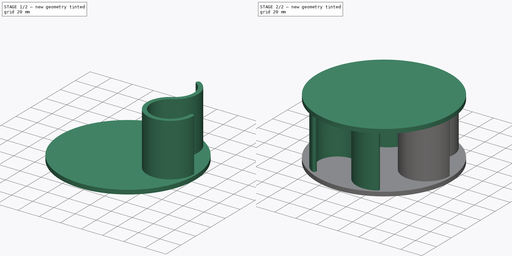
[diagram: build sequence overview — one tinted view per stage of 2, left to right]
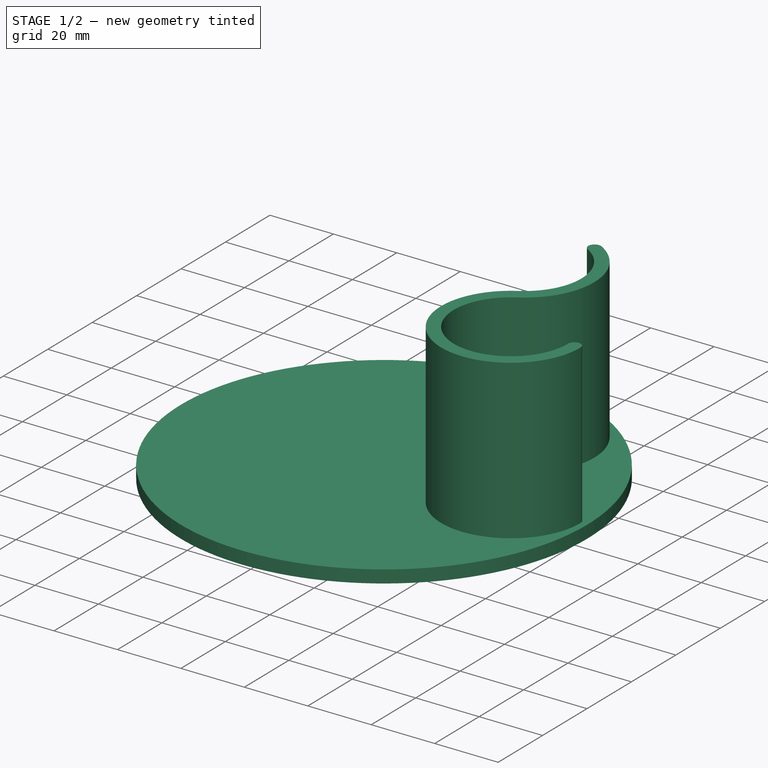
[diagram: stage 1 of 2 — iso view after this stage's code; geometry added in this stage tinted green]
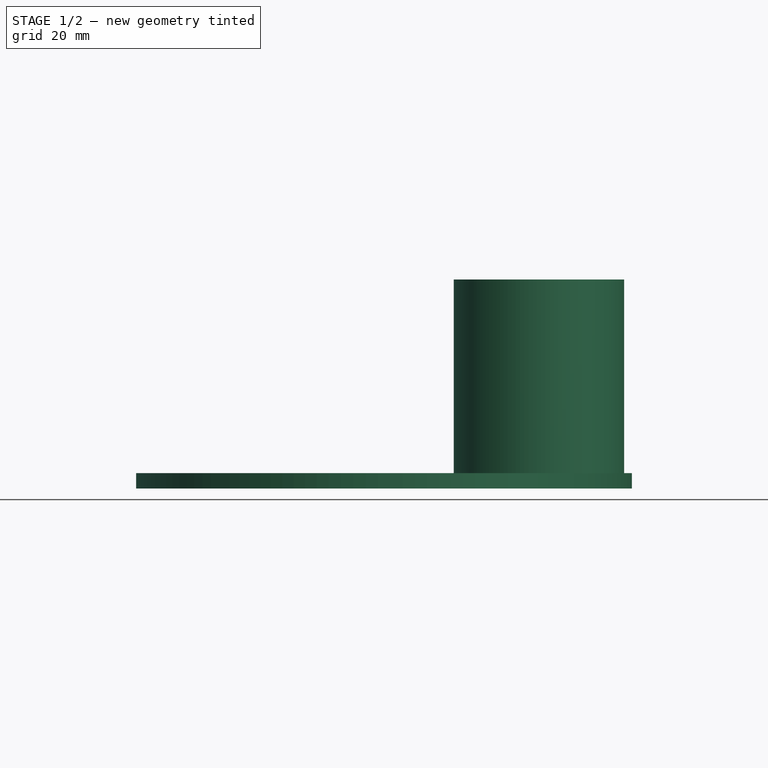
[diagram: stage 1 of 2 — front view after this stage's code; geometry added in this stage tinted green]
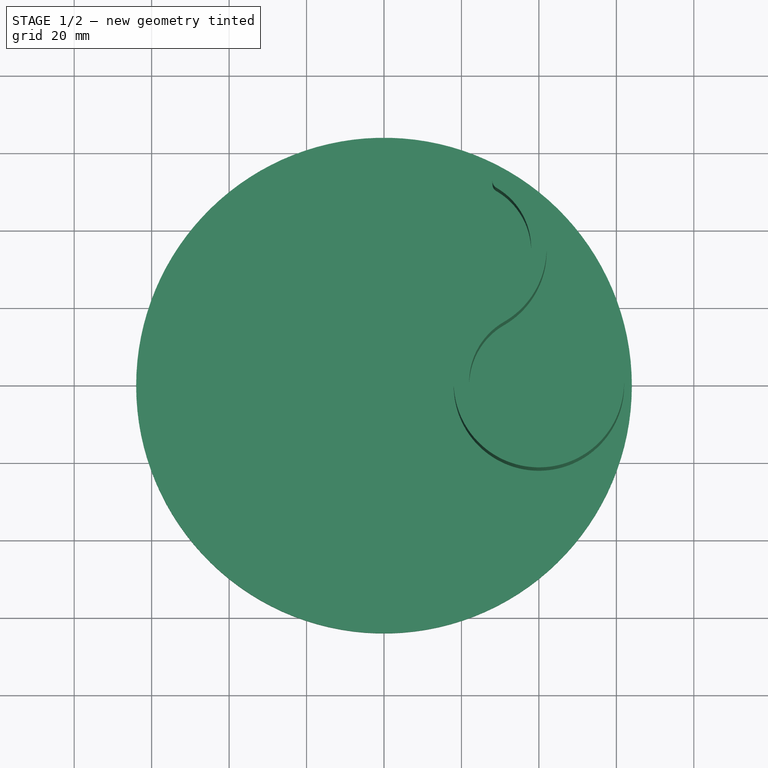
[diagram: stage 1 of 2 — top view after this stage's code; geometry added in this stage tinted green]
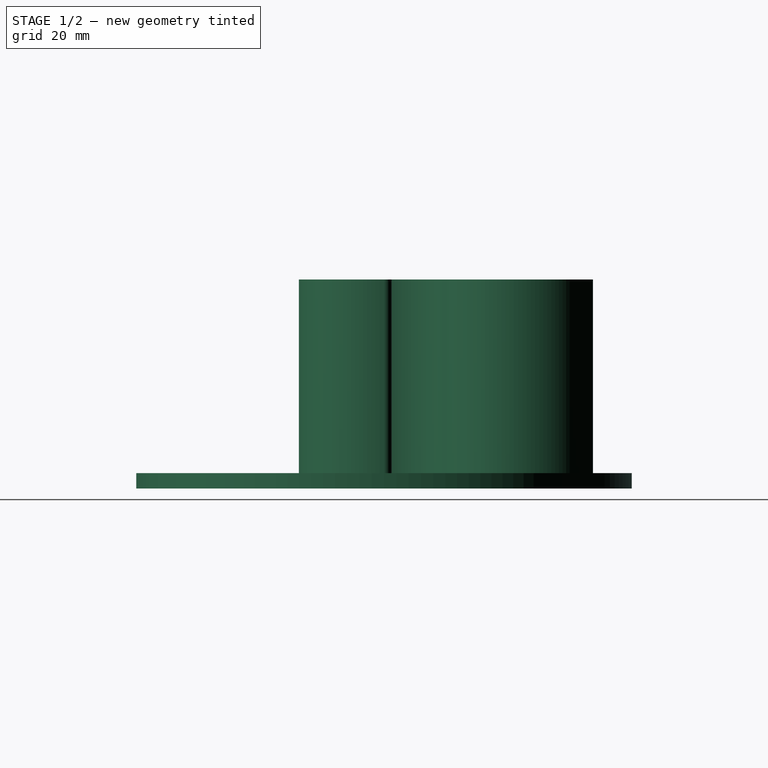
[diagram: stage 1 of 2 — right view after this stage's code; geometry added in this stage tinted green]
FCSTD DOCUMENT  (FreeCAD 0.19R24267 (Git))
Label: twist_turbine_BF
License: All rights reserved
LicenseURL: http://en.wikipedia.org/wiki/All_rights_reserved
objects: Sketcher::SketchObject×3, PartDesign::Pad×3, Spreadsheet::Sheet×1, PartDesign::PolarPattern×1, PartDesign::Body×1
note: 11 computed .brp shape members not serialized (recipe doc carries the construction recipe); baked Part::Feature solids carry a one-line shape summary decoded from their .brp

FEATURE [Spreadsheet::Sheet] Spreadsheet  label="Params"
  cells = A1=Name; B1=Value; C1=Description; A2=Arc Radius; B2(ArcRadius)=18; C2=Inner Radius of Each Arc; A3=Arc Thickness; B3(ArcThickness)=4; C3=The thickness of each arc wall; A4=Arc Seg Angle A; B4(ArcSegAngleA)=240; C4=Arc Segment angle for first half of the arc; A5=Arc Seg Angle B; B5(ArcSegAngleB)=120; C5=Arc Segment angle for second half of the arc; A6=Centre Circle Radius; B6(CentreCircleRadius)=20; C6=Radius of the Circle at the centre of the turbine; A7=Arc Blade Height; B7(ArcBladeHeight)=50; C7=The height of each blade / the distance between the two covers; A8=Blade Count; B8(BladeCount)=3; C8=The number of blades in the turbine (each will be equally spaced); A10=Calculated Values; B10=Value; C10=Description; A11=Cover Radius; B11(CoverRadius)==CentreCircleRadius * 3 + ArcThickness; C11=Radius of the top and bottom covers
FEATURE [Sketcher::SketchObject] Sketch  label="skBottomCover"
  FullyConstrained = true
  MapMode = 5
  Support = -> [XY_Plane]
  expr: Constraints[1] = <<Params>>.CoverRadius
  sketch-geometry (1):
    g0: Circle CenterX=0 CenterY=0 CenterZ=0 NormalX=0 NormalY=0 NormalZ=1 AngleXU=0 Radius=64
  constraints (2):
    c: Coincident(g0,g-1)
    c: Radius(g0) = 64
FEATURE [PartDesign::Pad] Pad  label="padBottomCover"
  Direction = (1,1,1)
  Length = 4
  Length2 = 100
  Profile = -> Sketch
  Reversed = true
  Type = 0
  expr: Length = <<Params>>.ArcThickness
FEATURE [Sketcher::SketchObject] Sketch001  label="skTurbineBlade"
  FullyConstrained = true
  MapMode = 5
  Support = -> [XY_Plane]
  expr: Constraints[27] = <<Params>>.ArcSegAngleB
  expr: Constraints[14] = <<Params>>.ArcRadius
  expr: Constraints[10] = <<Params>>.ArcRadius + <<Params>>.ArcThickness
  expr: Constraints[7] = 360 - <<Params>>.ArcSegAngleA
  expr: Constraints[1] = <<Params>>.CentreCircleRadius - <<Params>>.ArcThickness / 2
  sketch-geometry (11):
    g0: Circle CenterX=0 CenterY=0 CenterZ=0 NormalX=0 NormalY=0 NormalZ=1 AngleXU=0 Radius=18
    g1: ArcOfCircle CenterX=40 CenterY=0 CenterZ=0 NormalX=0 NormalY=0 NormalZ=1 AngleXU=0 Radius=22 StartAngle=2.0944 EndAngle=6.28319
    g2: LineSegment StartX=29 StartY=19.0526 StartZ=0 EndX=40 EndY=0 EndZ=0
    g3: LineSegment StartX=40 StartY=0 StartZ=0 EndX=62 EndY=-5.4e-15 EndZ=0
    g4: ArcOfCircle CenterX=40 CenterY=0 CenterZ=0 NormalX=0 NormalY=0 NormalZ=1 AngleXU=0 Radius=18 StartAngle=2.0944 EndAngle=6.28319
    g5: ArcOfCircle CenterX=60 CenterY=0 CenterZ=0 NormalX=0 NormalY=0 NormalZ=1 AngleXU=0 Radius=2 StartAngle=0 EndAngle=3.14159
    g6: ArcOfCircle CenterX=20 CenterY=34.641 CenterZ=0 NormalX=0 NormalY=0 NormalZ=1 AngleXU=0 Radius=22 StartAngle=5.23599 EndAngle=7.33038
    g7: ArcOfCircle CenterX=20 CenterY=34.641 CenterZ=0 NormalX=0 NormalY=0 NormalZ=1 AngleXU=0 Radius=18 StartAngle=5.23599 EndAngle=7.33038
    g8: LineSegment StartX=29 StartY=19.0526 StartZ=0 EndX=20 EndY=34.641 EndZ=0
    g9: LineSegment StartX=20 StartY=34.641 StartZ=0 EndX=28.9999 EndY=50.2295 EndZ=0
    g10: ArcOfCircle CenterX=29.9999 CenterY=51.9615 CenterZ=0 NormalX=0 NormalY=0 NormalZ=1 AngleXU=0 Radius=2 StartAngle=1.0472 EndAngle=4.18879
  constraints (32):
    c: Coincident(g0,g-1)
    c: Radius(g0) = 18
    c: PointOnObject(g1,g-1)
    c: Coincident(g2,g1)
    c: Coincident(g2,g1)
    c: Coincident(g3,g1)
    c: Coincident(g3,g1)
    c: Angle(g3,g2) = 2.0944
    c: PointOnObject(g1,g-1)
    c: Tangent(g1,g0)
    c: Radius(g1) = 22
    c: Coincident(g4,g1)
    c: PointOnObject(g4,g3)
    c: PointOnObject(g4,g2)
    c: Radius(g4) = 18
    c: PointOnObject(g5,g3)
    c: Coincident(g5,g4)
    c: Coincident(g5,g1)
    c: Coincident(g6,g4)
    c: Coincident(g7,g6)
    c: Coincident(g7,g1)
    c: Equal(g6,g1)
    c: Equal(g7,g4)
    c: Coincident(g8,g1)
    c: Coincident(g8,g6)
    c: Coincident(g9,g6)
    c: Coincident(g9,g7)
    c: Angle(g8,g9) = 2.0944
    c: PointOnObject(g6,g9)
    c: Coincident(g10,g6)
    c: Coincident(g10,g7)
    c: PointOnObject(g10,g9)
FEATURE [PartDesign::Pad] Pad001  label="padArcBlade"
  BaseFeature = -> Pad
  Direction = (1,1,1)
  Length = 50
  Length2 = 100
  Profile = -> Sketch001
  Type = 0
  expr: Length = <<Params>>.ArcBladeHeight
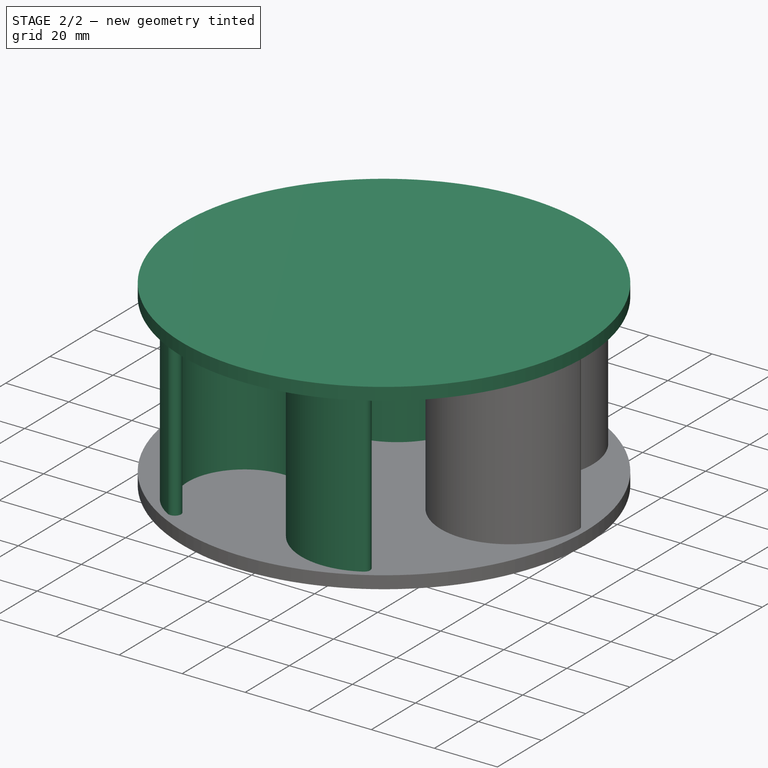
[diagram: stage 2 of 2 — iso view after this stage's code; geometry added in this stage tinted green]
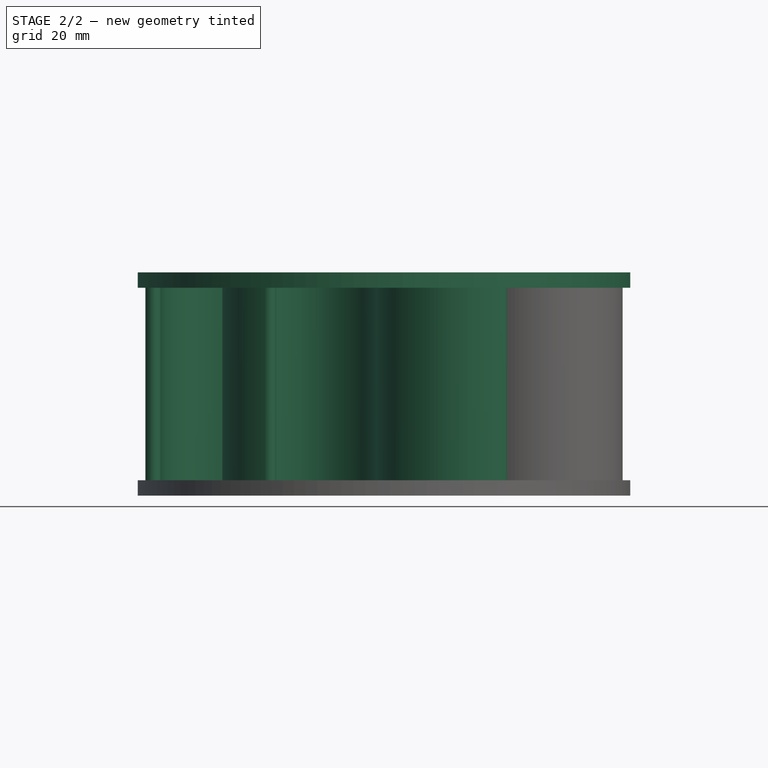
[diagram: stage 2 of 2 — front view after this stage's code; geometry added in this stage tinted green]
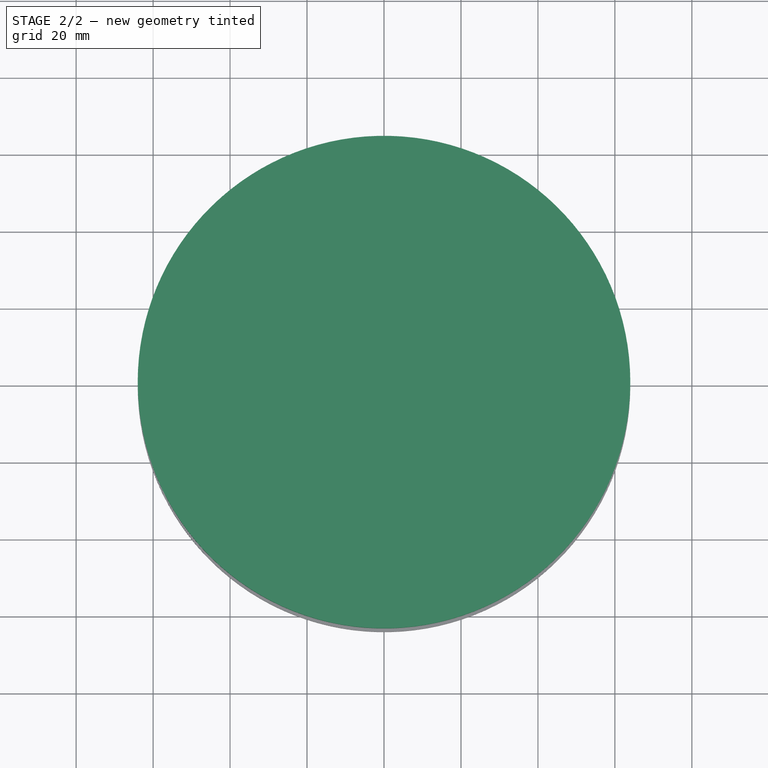
[diagram: stage 2 of 2 — top view after this stage's code; geometry added in this stage tinted green]
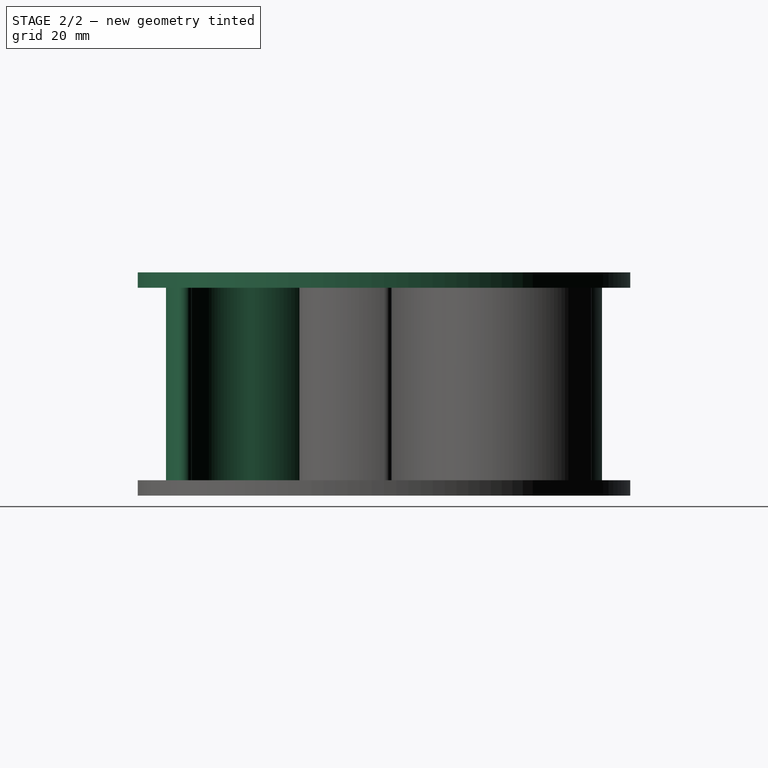
[diagram: stage 2 of 2 — right view after this stage's code; geometry added in this stage tinted green]
FEATURE [PartDesign::PolarPattern] PolarPattern  label="polBladeMultiply"
  Angle = 360
  Axis = -> Sketch001 [N_Axis]
  BaseFeature = -> Pad001
  Occurrences = 3
  Originals = -> [Pad001]
  expr: Occurrences = <<Params>>.BladeCount
FEATURE [Sketcher::SketchObject] Sketch002  label="skTopCover"
  AttachmentOffset = pos=(0,0,50) rot=(0,0,1;0rad)
  FullyConstrained = true
  MapMode = 5
  Placement = pos=(0,0,50) rot=(0,0,1;0rad)
  Support = -> [XY_Plane]
  expr: .AttachmentOffset.Base.z = <<Params>>.ArcBladeHeight
  expr: Constraints[1] = <<Params>>.CoverRadius
  sketch-geometry (1):
    g0: Circle CenterX=0 CenterY=0 CenterZ=0 NormalX=0 NormalY=0 NormalZ=1 AngleXU=0 Radius=64
  constraints (2):
    c: Coincident(g0,g-1)
    c: Radius(g0) = 64
FEATURE [PartDesign::Pad] Pad002  label="padTopCover"
  BaseFeature = -> PolarPattern
  Direction = (1,1,1)
  Length = 4
  Length2 = 100
  Profile = -> Sketch002
  Type = 0
  expr: Length = <<Params>>.ArcThickness
FEATURE [PartDesign::Body] Body  label="Turbine"
  Group = -> [Sketch,Pad,Sketch001,Pad001,PolarPattern,Sketch002,Pad002]
  Origin = -> Origin
  Tip = -> Pad002
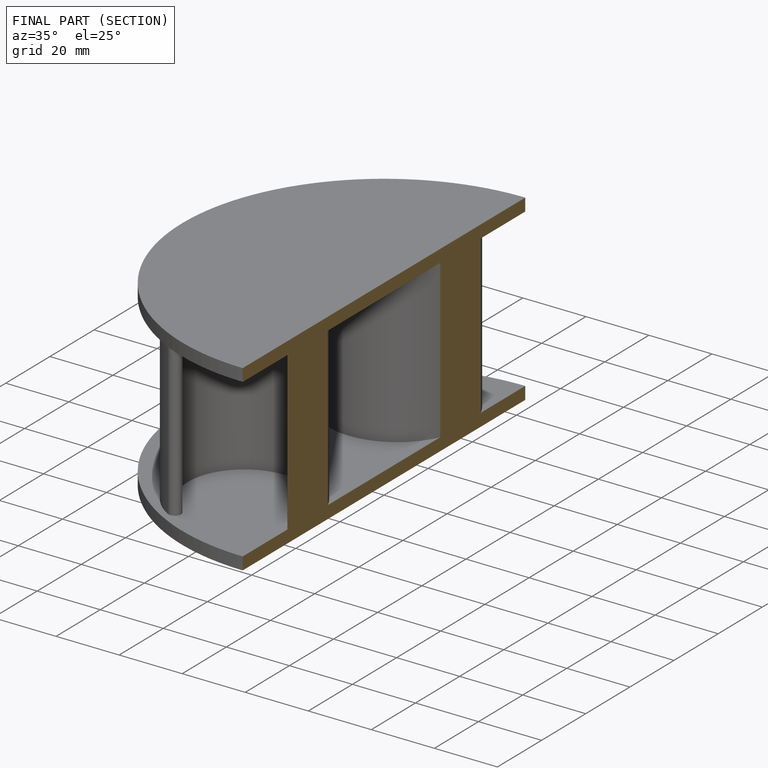
[diagram: finished part — half-section view (interior)]
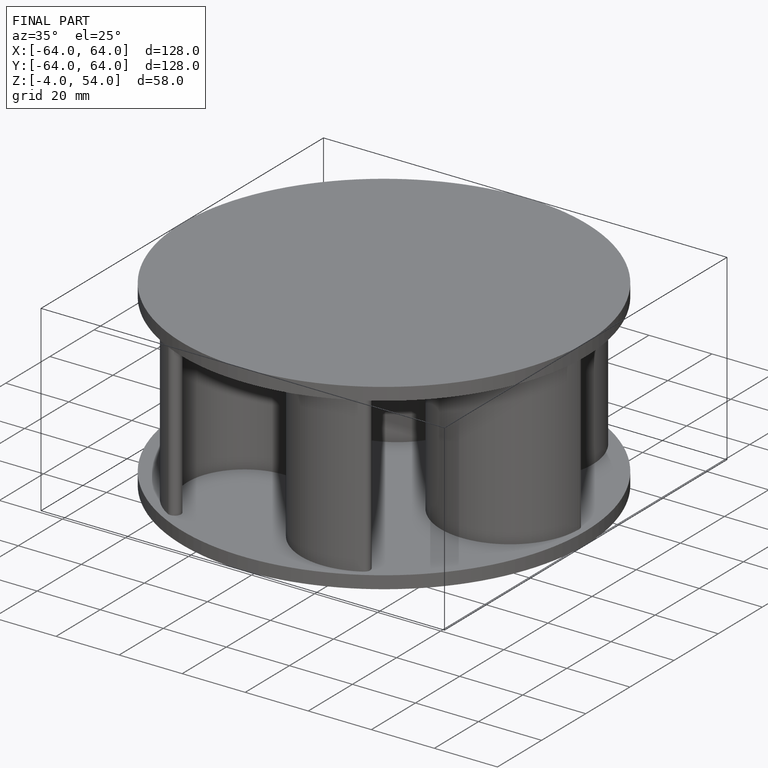
[diagram: finished part — iso view with bounding-box wireframe]
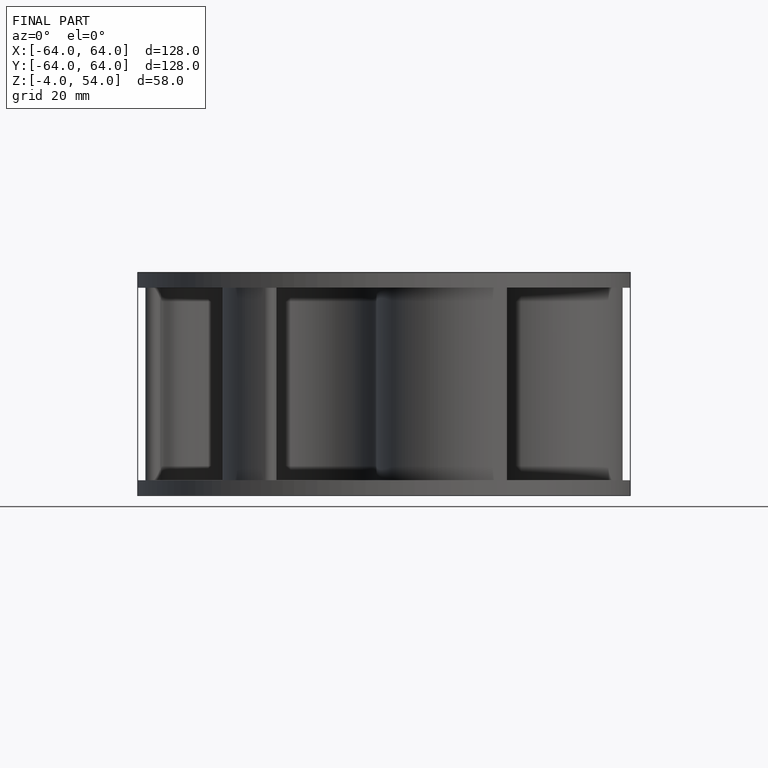
[diagram: finished part — front view with bounding-box wireframe]
